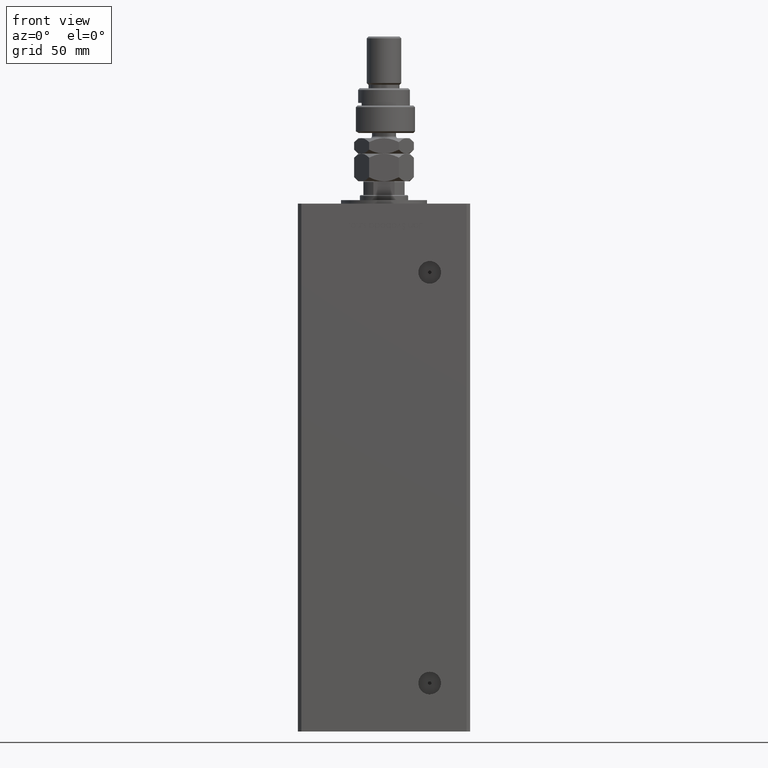
[diagram: clean part render]
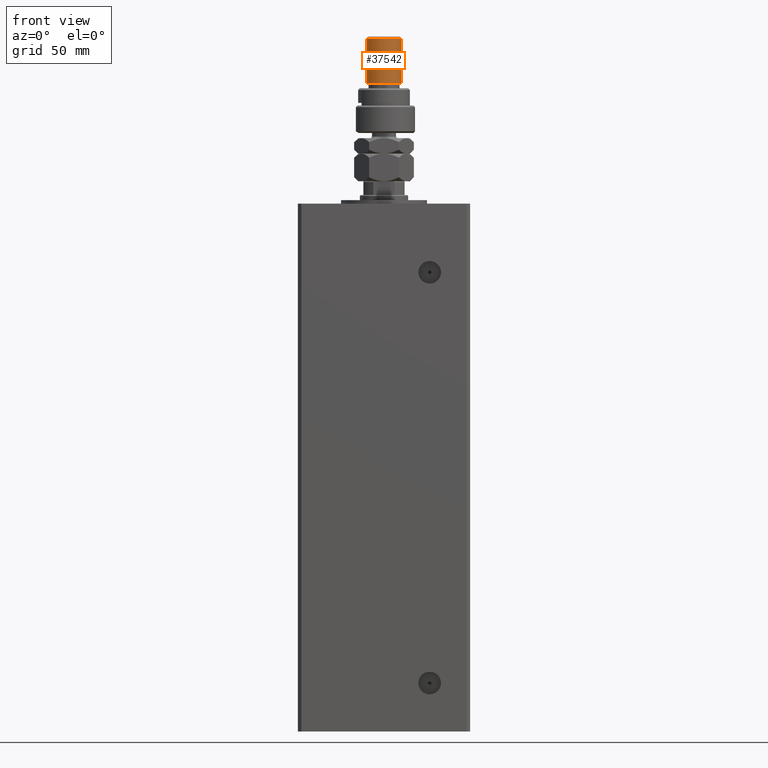
[diagram: same view with one face highlighted and labeled with its STEP entity id]
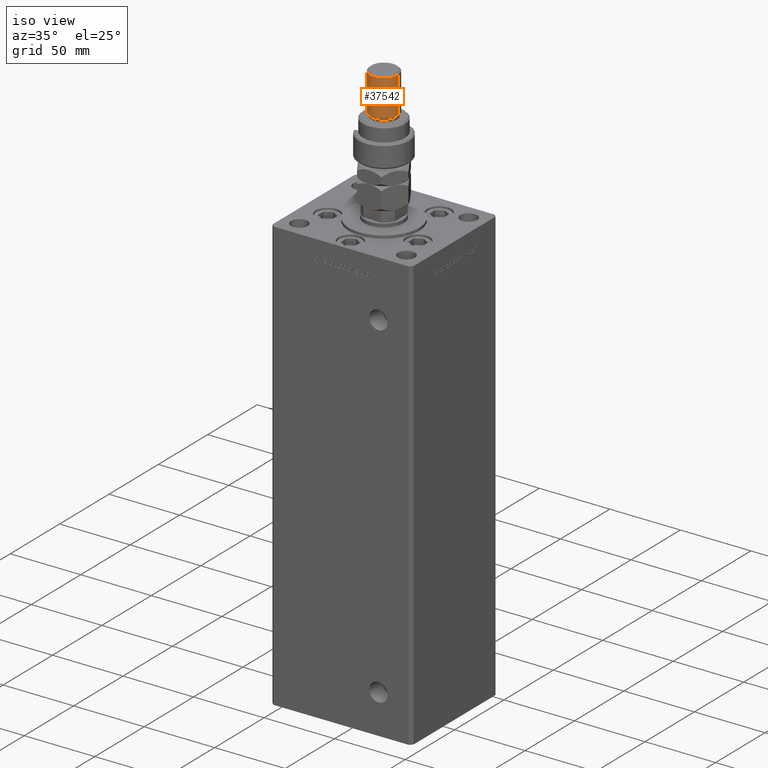
[diagram: same view with one face highlighted and labeled with its STEP entity id]
A machine part, front view. The second image highlights one B-rep face of the part: STEP entity #37542.
A second angle (iso view) of the same face is appended — the face is thin or edge-on in the first view.
In plain terms, the highlighted cylindrical surface (edge-blend (fillet) strip) has radius 10 mm, axis along (-0, -0, -1).
Its self-contained STEP definition (entity closure, byte-faithful):
#365 = VECTOR ( 'NONE', #17270, 1000.000000000000000 ) ;
#1108 = CARTESIAN_POINT ( 'NONE',  ( 0.000000000000000000, 0.000000000000000000, 54.99999999999998579 ) ) ;
#4319 = CARTESIAN_POINT ( 'NONE',  ( 0.000000000000000000, 0.000000000000000000, 56.00000000000000711 ) ) ;
#6334 = EDGE_CURVE ( 'NONE', #54529, #45341, #48678, .T. ) ;
#7542 = CARTESIAN_POINT ( 'NONE',  ( -10.00000000000000000, 0.000000000000000000, 54.99999999999998579 ) ) ;
#9693 = CARTESIAN_POINT ( 'NONE',  ( 10.00000000000000000, 1.224646799147353256E-15, 54.99999999999998579 ) ) ;
#10463 = LINE ( 'NONE', #36628, #46662 ) ;
#11223 = LINE ( 'NONE', #47011, #365 ) ;
#12415 = CYLINDRICAL_SURFACE ( 'NONE', #13477, 10.00000000000000000 ) ;
#13477 = AXIS2_PLACEMENT_3D ( 'NONE', #4319, #34138, #29400 ) ;
#17270 = DIRECTION ( 'NONE',  ( -0.000000000000000000, -0.000000000000000000, -1.000000000000000000 ) ) ;
#24262 = EDGE_CURVE ( 'NONE', #54529, #37691, #11223, .T. ) ;
#24733 = AXIS2_PLACEMENT_3D ( 'NONE', #1108, #35888, #39237 ) ;
#25134 = CARTESIAN_POINT ( 'NONE',  ( -10.00000000000000000, 0.000000000000000000, 29.00000000000000711 ) ) ;
#28787 = ORIENTED_EDGE ( 'NONE', *, *, #41190, .T. ) ;
#29400 = DIRECTION ( 'NONE',  ( -1.000000000000000000, 0.000000000000000000, 0.000000000000000000 ) ) ;
#30469 = VERTEX_POINT ( 'NONE', #25134 ) ;
#32040 = ORIENTED_EDGE ( 'NONE', *, *, #6334, .T. ) ;
#32353 = AXIS2_PLACEMENT_3D ( 'NONE', #48935, #40586, #40854 ) ;
#33380 = EDGE_LOOP ( 'NONE', ( #41497, #32040, #28787, #54579 ) ) ;
#34138 = DIRECTION ( 'NONE',  ( -0.000000000000000000, -0.000000000000000000, -1.000000000000000000 ) ) ;
#35888 = DIRECTION ( 'NONE',  ( 0.000000000000000000, 0.000000000000000000, -1.000000000000000000 ) ) ;
#36628 = CARTESIAN_POINT ( 'NONE',  ( -10.00000000000000000, 0.000000000000000000, 56.00000000000000711 ) ) ;
#37542 = ADVANCED_FACE ( 'NONE', ( #47179 ), #12415, .T. ) ;
#37691 = VERTEX_POINT ( 'NONE', #49623 ) ;
#39237 = DIRECTION ( 'NONE',  ( 1.000000000000000000, 0.000000000000000000, 0.000000000000000000 ) ) ;
#40586 = DIRECTION ( 'NONE',  ( -0.000000000000000000, -0.000000000000000000, 1.000000000000000000 ) ) ;
#40854 = DIRECTION ( 'NONE',  ( 1.000000000000000000, 0.000000000000000000, 0.000000000000000000 ) ) ;
#41190 = EDGE_CURVE ( 'NONE', #45341, #30469, #10463, .T. ) ;
#41497 = ORIENTED_EDGE ( 'NONE', *, *, #24262, .F. ) ;
#45341 = VERTEX_POINT ( 'NONE', #7542 ) ;
#46662 = VECTOR ( 'NONE', #49115, 1000.000000000000000 ) ;
#47011 = CARTESIAN_POINT ( 'NONE',  ( 10.00000000000000000, 1.224646799147353256E-15, 56.00000000000000711 ) ) ;
#47179 = FACE_OUTER_BOUND ( 'NONE', #33380, .T. ) ;
#48678 = CIRCLE ( 'NONE', #24733, 10.00000000000000000 ) ;
#48935 = CARTESIAN_POINT ( 'NONE',  ( 0.000000000000000000, 0.000000000000000000, 29.00000000000000711 ) ) ;
#49115 = DIRECTION ( 'NONE',  ( -0.000000000000000000, -0.000000000000000000, -1.000000000000000000 ) ) ;
#49202 = CIRCLE ( 'NONE', #32353, 10.00000000000000000 ) ;
#49472 = EDGE_CURVE ( 'NONE', #30469, #37691, #49202, .T. ) ;
#49623 = CARTESIAN_POINT ( 'NONE',  ( 10.00000000000000000, 1.224646799147353256E-15, 29.00000000000000711 ) ) ;
#54529 = VERTEX_POINT ( 'NONE', #9693 ) ;
#54579 = ORIENTED_EDGE ( 'NONE', *, *, #49472, .T. ) ;